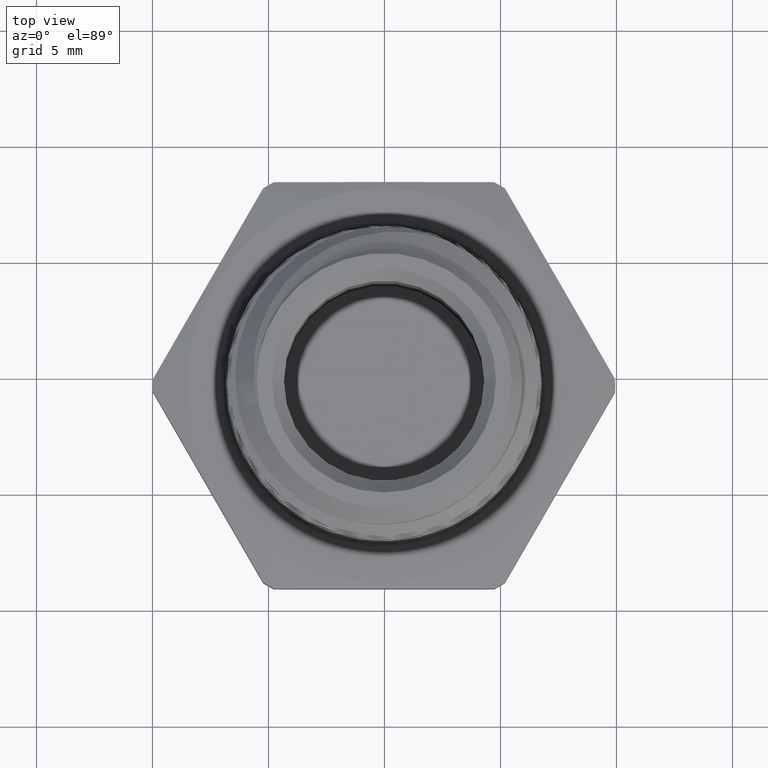
[diagram: clean part render]
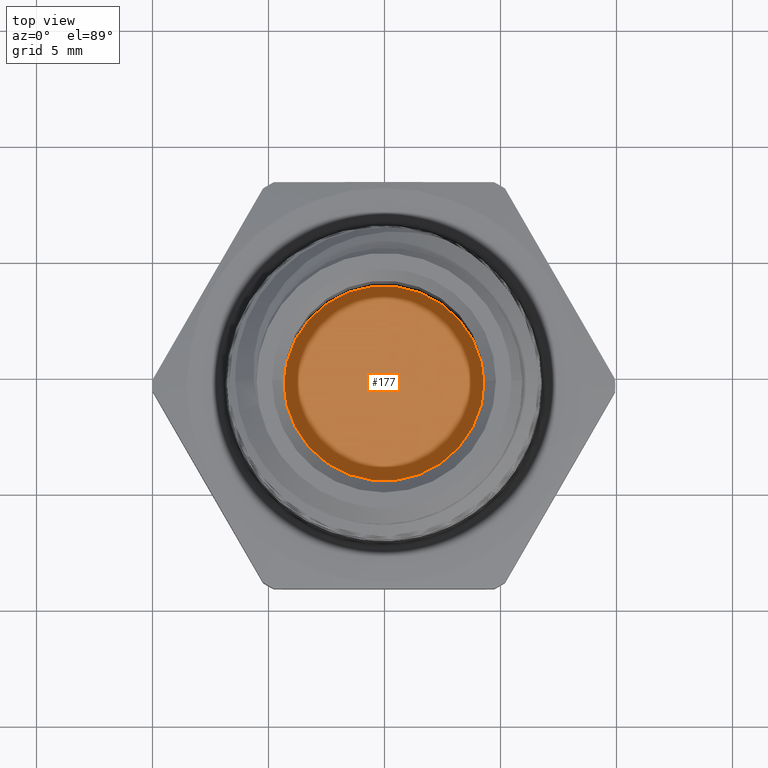
[diagram: same view with one face highlighted and labeled with its STEP entity id]
A machine part, top view. The second image highlights one B-rep face of the part: STEP entity #177.
In plain terms, the highlighted planar face has unit normal (0, 0, -1).
Its self-contained STEP definition (entity closure, byte-faithful):
#54 = EDGE_CURVE ( 'NONE', #637, #636, #666, .T. ) ;
#55 = EDGE_CURVE ( 'NONE', #636, #637, #670, .T. ) ;
#167 = CARTESIAN_POINT ( 'NONE',  ( 0.0000000000000000000, 0.0000000000000000000, 0.0000000000000000000 ) ) ;
#168 = DIRECTION ( 'NONE',  ( 0.0000000000000000000, 0.0000000000000000000, 1.000000000000000000 ) ) ;
#169 = DIRECTION ( 'NONE',  ( 1.000000000000000000, 0.0000000000000000000, 0.0000000000000000000 ) ) ;
#170 = CARTESIAN_POINT ( 'NONE',  ( 0.0000000000000000000, 0.0000000000000000000, 0.0000000000000000000 ) ) ;
#171 = DIRECTION ( 'NONE',  ( 0.0000000000000000000, 0.0000000000000000000, 1.000000000000000000 ) ) ;
#177 = ADVANCED_FACE ( 'NONE', ( #745 ), #1579, .F. ) ;
#316 = AXIS2_PLACEMENT_3D ( 'NONE', #167, #168, #169 ) ;
#317 = AXIS2_PLACEMENT_3D ( 'NONE', #170, #171, #5098 ) ;
#503 = EDGE_LOOP ( 'NONE', ( #585, #586 ) ) ;
#585 = ORIENTED_EDGE ( 'NONE', *, *, #55, .F. ) ;
#586 = ORIENTED_EDGE ( 'NONE', *, *, #54, .F. ) ;
#636 = VERTEX_POINT ( 'NONE', #4949 ) ;
#637 = VERTEX_POINT ( 'NONE', #4950 ) ;
#666 = CIRCLE ( 'NONE', #316, 0.1699999999999999800 ) ;
#670 = CIRCLE ( 'NONE', #317, 0.1699999999999999800 ) ;
#745 = FACE_OUTER_BOUND ( 'NONE', #503, .T. ) ;
#1577 = CARTESIAN_POINT ( 'NONE',  ( 0.0000000000000000000, 0.0000000000000000000, 0.0000000000000000000 ) ) ;
#1579 = PLANE ( 'NONE',  #1682 ) ;
#1581 = DIRECTION ( 'NONE',  ( 0.0000000000000000000, 0.0000000000000000000, 1.000000000000000000 ) ) ;
#1582 = DIRECTION ( 'NONE',  ( 1.000000000000000000, 0.0000000000000000000, -0.0000000000000000000 ) ) ;
#1682 = AXIS2_PLACEMENT_3D ( 'NONE', #1577, #1581, #1582 ) ;
#4949 = CARTESIAN_POINT ( 'NONE',  ( -0.1699999999999999800, 0.0000000000000000000, 0.0000000000000000000 ) ) ;
#4950 = CARTESIAN_POINT ( 'NONE',  ( 0.1699999999999999800, 2.081899558550500500E-017, 0.0000000000000000000 ) ) ;
#5098 = DIRECTION ( 'NONE',  ( 1.000000000000000000, 0.0000000000000000000, 0.0000000000000000000 ) ) ;